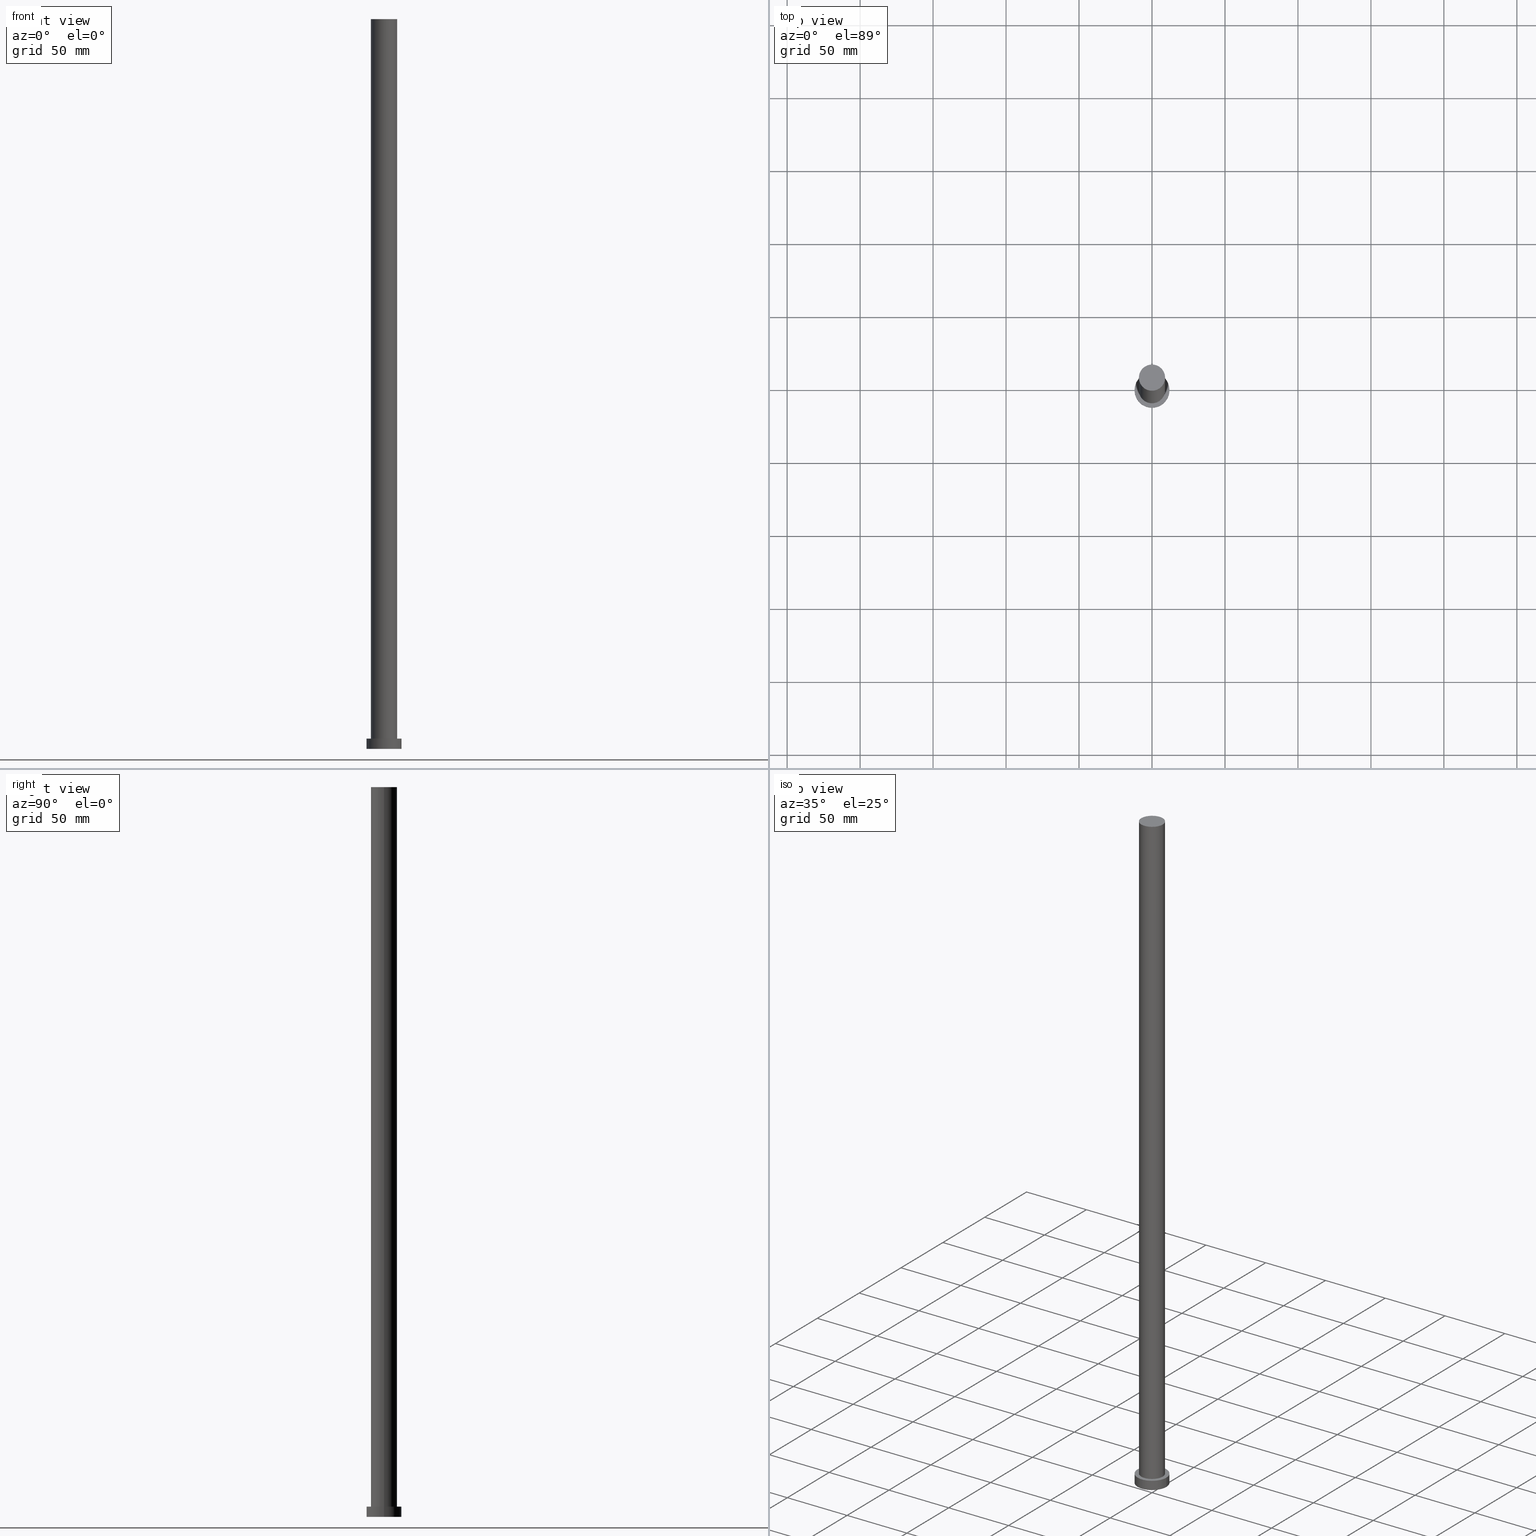
[diagram: canonical four-view strip — front | top / right | iso, engineering-drawing reading convention]
A machine part, canonical four-view strip (front | top / right | iso — engineering-drawing reading convention). The complete STEP part file that produces these views, byte-faithful:
ISO-10303-21;
HEADER;
FILE_DESCRIPTION (( 'STEP AP203' ),
    '1' );
FILE_NAME ('f5ec.STEP',
    '2023-02-13T07:35:05',
    ( '' ),
    ( '' ),
    'SwSTEP 2.0',
    'SolidWorks 2019',
    '' );
FILE_SCHEMA (( 'CONFIG_CONTROL_DESIGN' ));
ENDSEC;

DATA;
#1 = DIRECTION ( 'NONE',  ( 0.000000000000000000, 0.000000000000000000, 1.000000000000000000 ) ) ;
#2 = CARTESIAN_POINT ( 'NONE',  ( 0.000000000000000000, 0.000000000000000000, 0.000000000000000000 ) ) ;
#3 = EDGE_CURVE ( 'NONE', #236, #179, #159, .T. ) ;
#4 = ORIENTED_EDGE ( 'NONE', *, *, #248, .T. ) ;
#5 = PLANE ( 'NONE',  #111 ) ;
#6 = FACE_OUTER_BOUND ( 'NONE', #119, .T. ) ;
#7 = ORIENTED_EDGE ( 'NONE', *, *, #235, .T. ) ;
#8 = ORIENTED_EDGE ( 'NONE', *, *, #19, .T. ) ;
#9 = CC_DESIGN_DATE_AND_TIME_ASSIGNMENT ( #15, #191, ( #213 ) ) ;
#10 = CYLINDRICAL_SURFACE ( 'NONE', #221, 12.00000000000000178 ) ;
#11 = CIRCLE ( 'NONE', #86, 9.000000000000000000 ) ;
#12 = CC_DESIGN_APPROVAL ( #136, ( #213 ) ) ;
#13 = CARTESIAN_POINT ( 'NONE',  ( -9.000000000000000000, 0.000000000000000000, 500.0000000000000000 ) ) ;
#14 = CALENDAR_DATE ( 2023, 13, 2 ) ;
#15 = DATE_AND_TIME ( #185, #157 ) ;
#16 = CLOSED_SHELL ( 'NONE', ( #148, #126, #121, #21, #38, #205, #75 ) ) ;
#17 = CC_DESIGN_APPROVAL ( #219, ( #194 ) ) ;
#18 = FACE_BOUND ( 'NONE', #56, .T. ) ;
#19 = EDGE_CURVE ( 'NONE', #174, #52, #43, .T. ) ;
#20 = ORIENTED_EDGE ( 'NONE', *, *, #210, .T. ) ;
#21 = ADVANCED_FACE ( 'NONE', ( #18, #204 ), #163, .T. ) ;
#22 = LOCAL_TIME ( 8, 35, 5.000000000000000000, #109 ) ;
#23 = EDGE_LOOP ( 'NONE', ( #4, #229 ) ) ;
#24 = CALENDAR_DATE ( 2023, 13, 2 ) ;
#25 = PERSON_AND_ORGANIZATION_ROLE ( 'design_owner' ) ;
#26 = EDGE_CURVE ( 'NONE', #199, #186, #251, .T. ) ;
#27 = DIRECTION ( 'NONE',  ( -1.000000000000000000, 0.000000000000000000, 0.000000000000000000 ) ) ;
#28 = DIRECTION ( 'NONE',  ( 1.000000000000000000, 0.000000000000000000, 0.000000000000000000 ) ) ;
#29 = CARTESIAN_POINT ( 'NONE',  ( 0.000000000000000000, 0.000000000000000000, 0.000000000000000000 ) ) ;
#30 = CARTESIAN_POINT ( 'NONE',  ( 0.000000000000000000, 0.000000000000000000, 500.0000000000000000 ) ) ;
#31 = ORIENTED_EDGE ( 'NONE', *, *, #55, .F. ) ;
#32 = APPLICATION_PROTOCOL_DEFINITION ( 'international standard', 'config_control_design', 1994, #70 ) ;
#33 = DIRECTION ( 'NONE',  ( 0.000000000000000000, 0.000000000000000000, 1.000000000000000000 ) ) ;
#34 = DATE_AND_TIME ( #44, #35 ) ;
#35 = LOCAL_TIME ( 8, 35, 5.000000000000000000, #218 ) ;
#36 = DIRECTION ( 'NONE',  ( -1.000000000000000000, 0.000000000000000000, 0.000000000000000000 ) ) ;
#37 = ORIENTED_EDGE ( 'NONE', *, *, #55, .T. ) ;
#38 = ADVANCED_FACE ( 'NONE', ( #6 ), #50, .F. ) ;
#39 = AXIS2_PLACEMENT_3D ( 'NONE', #114, #93, #181 ) ;
#40 = MECHANICAL_CONTEXT ( 'NONE', #225, 'mechanical' ) ;
#41 = EDGE_CURVE ( 'NONE', #186, #199, #73, .T. ) ;
#42 = APPLICATION_PROTOCOL_DEFINITION ( 'international standard', 'config_control_design', 1994, #225 ) ;
#43 = CIRCLE ( 'NONE', #254, 9.000000000000000000 ) ;
#44 = CALENDAR_DATE ( 2023, 13, 2 ) ;
#45 = APPROVAL_PERSON_ORGANIZATION ( #176, #102, #166 ) ;
#46 = PERSON_AND_ORGANIZATION ( #80, #202 ) ;
#47 = UNCERTAINTY_MEASURE_WITH_UNIT (LENGTH_MEASURE( 1.000000000000000082E-05 ), #187, 'distance_accuracy_value', 'NONE');
#48 = EDGE_CURVE ( 'NONE', #174, #179, #201, .T. ) ;
#49 = AXIS2_PLACEMENT_3D ( 'NONE', #117, #165, #147 ) ;
#50 = PLANE ( 'NONE',  #71 ) ;
#51 = FACE_OUTER_BOUND ( 'NONE', #81, .T. ) ;
#52 = VERTEX_POINT ( 'NONE', #190 ) ;
#53 = SECURITY_CLASSIFICATION ( '', '', #151 ) ;
#54 = DIRECTION ( 'NONE',  ( -0.000000000000000000, -0.000000000000000000, -1.000000000000000000 ) ) ;
#55 = EDGE_CURVE ( 'NONE', #179, #236, #167, .T. ) ;
#56 = EDGE_LOOP ( 'NONE', ( #31, #230 ) ) ;
#57 = CARTESIAN_POINT ( 'NONE',  ( 12.00000000000000178, 1.469576158976824144E-15, 7.000000000000000000 ) ) ;
#58 = ORIENTED_EDGE ( 'NONE', *, *, #41, .T. ) ;
#59 = AXIS2_PLACEMENT_3D ( 'NONE', #30, #54, #27 ) ;
#60 = COORDINATED_UNIVERSAL_TIME_OFFSET ( 1, 0, .AHEAD. ) ;
#61 = PRODUCT_RELATED_PRODUCT_CATEGORY ( 'detail', '', ( #107 ) ) ;
#62 = PRODUCT_DEFINITION_SHAPE ( 'NONE', 'NONE',  #213 ) ;
#63 = ORIENTED_EDGE ( 'NONE', *, *, #3, .T. ) ;
#64 = PERSON_AND_ORGANIZATION ( #80, #202 ) ;
#65 = CARTESIAN_POINT ( 'NONE',  ( 9.000000000000000000, 1.102182119232617714E-15, 500.0000000000000000 ) ) ;
#66 = AXIS2_PLACEMENT_3D ( 'NONE', #196, #103, #234 ) ;
#67 = DATE_AND_TIME ( #175, #22 ) ;
#68 = VECTOR ( 'NONE', #209, 1000.000000000000000 ) ;
#69 = CARTESIAN_POINT ( 'NONE',  ( 0.000000000000000000, 0.000000000000000000, 0.000000000000000000 ) ) ;
#70 = APPLICATION_CONTEXT ( 'configuration controlled 3d designs of mechanical parts and assemblies' ) ;
#71 = AXIS2_PLACEMENT_3D ( 'NONE', #2, #223, #160 ) ;
#72 = ORIENTED_EDGE ( 'NONE', *, *, #134, .T. ) ;
#73 = CIRCLE ( 'NONE', #120, 12.00000000000000178 ) ;
#74 = DIRECTION ( 'NONE',  ( 1.000000000000000000, 0.000000000000000000, 0.000000000000000000 ) ) ;
#75 = ADVANCED_FACE ( 'NONE', ( #182 ), #5, .T. ) ;
#76 = ORIENTED_EDGE ( 'NONE', *, *, #48, .F. ) ;
#77 = EDGE_LOOP ( 'NONE', ( #8, #141 ) ) ;
#78 = PERSON_AND_ORGANIZATION_ROLE ( 'creator' ) ;
#79 = CARTESIAN_POINT ( 'NONE',  ( 0.000000000000000000, 0.000000000000000000, 500.0000000000000000 ) ) ;
#80 = PERSON ( 'NEUR�EN�', 'NEUR�EN�', 'NEUR�EN�', ('NEUR�EN�'), ('NEUR�EN�'), ('NEUR�EN�') ) ;
#81 = EDGE_LOOP ( 'NONE', ( #100, #164, #97, #37 ) ) ;
#82 = DIRECTION ( 'NONE',  ( -0.000000000000000000, -0.000000000000000000, -1.000000000000000000 ) ) ;
#83 = EDGE_LOOP ( 'NONE', ( #170, #7, #122, #125 ) ) ;
#84 = APPROVAL_STATUS ( 'not_yet_approved' ) ;
#85 = LINE ( 'NONE', #65, #193 ) ;
#86 = AXIS2_PLACEMENT_3D ( 'NONE', #214, #87, #88 ) ;
#87 = DIRECTION ( 'NONE',  ( 0.000000000000000000, 0.000000000000000000, 1.000000000000000000 ) ) ;
#88 = DIRECTION ( 'NONE',  ( 1.000000000000000000, 0.000000000000000000, 0.000000000000000000 ) ) ;
#89 = DIRECTION ( 'NONE',  ( 0.000000000000000000, 0.000000000000000000, 1.000000000000000000 ) ) ;
#90 = PERSON_AND_ORGANIZATION_ROLE ( 'classification_officer' ) ;
#91 = PERSON_AND_ORGANIZATION ( #80, #202 ) ;
#92 = DIRECTION ( 'NONE',  ( -0.000000000000000000, -0.000000000000000000, -1.000000000000000000 ) ) ;
#93 = DIRECTION ( 'NONE',  ( 0.000000000000000000, 0.000000000000000000, 1.000000000000000000 ) ) ;
#94 = COORDINATED_UNIVERSAL_TIME_OFFSET ( 1, 0, .AHEAD. ) ;
#95 = CC_DESIGN_SECURITY_CLASSIFICATION ( #53, ( #194 ) ) ;
#96 = VERTEX_POINT ( 'NONE', #110 ) ;
#97 = ORIENTED_EDGE ( 'NONE', *, *, #48, .T. ) ;
#98 =( NAMED_UNIT ( * ) PLANE_ANGLE_UNIT ( ) SI_UNIT ( $, .RADIAN. ) );
#99 = CIRCLE ( 'NONE', #252, 12.00000000000000178 ) ;
#100 = ORIENTED_EDGE ( 'NONE', *, *, #134, .F. ) ;
#101 = DIRECTION ( 'NONE',  ( 1.000000000000000000, 0.000000000000000000, 0.000000000000000000 ) ) ;
#102 = APPROVAL ( #253, 'NEUR�EN�' ) ;
#103 = DIRECTION ( 'NONE',  ( -0.000000000000000000, -0.000000000000000000, -1.000000000000000000 ) ) ;
#104 = DIRECTION ( 'NONE',  ( -0.000000000000000000, -0.000000000000000000, -1.000000000000000000 ) ) ;
#105 = PERSON_AND_ORGANIZATION ( #80, #202 ) ;
#106 = PERSON_AND_ORGANIZATION ( #80, #202 ) ;
#107 = PRODUCT ( 'f5ec', 'f5ec', '', ( #40 ) ) ;
#108 = EDGE_CURVE ( 'NONE', #52, #174, #11, .T. ) ;
#109 = COORDINATED_UNIVERSAL_TIME_OFFSET ( 1, 0, .AHEAD. ) ;
#110 = CARTESIAN_POINT ( 'NONE',  ( 12.00000000000000178, 1.469576158976824144E-15, 7.000000000000000000 ) ) ;
#111 = AXIS2_PLACEMENT_3D ( 'NONE', #128, #231, #129 ) ;
#112 = CC_DESIGN_PERSON_AND_ORGANIZATION_ASSIGNMENT ( #64, #220, ( #194 ) ) ;
#113 = VECTOR ( 'NONE', #203, 1000.000000000000000 ) ;
#114 = CARTESIAN_POINT ( 'NONE',  ( 0.000000000000000000, 0.000000000000000000, 7.000000000000000000 ) ) ;
#115 = DIRECTION ( 'NONE',  ( 1.000000000000000000, 0.000000000000000000, 0.000000000000000000 ) ) ;
#116 =( GEOMETRIC_REPRESENTATION_CONTEXT ( 3 ) GLOBAL_UNCERTAINTY_ASSIGNED_CONTEXT ( ( #47 ) ) GLOBAL_UNIT_ASSIGNED_CONTEXT ( ( #187, #98, #183 ) ) REPRESENTATION_CONTEXT ( 'NONE', 'WORKASPACE' ) );
#117 = CARTESIAN_POINT ( 'NONE',  ( 0.000000000000000000, 0.000000000000000000, 7.000000000000000000 ) ) ;
#118 = CARTESIAN_POINT ( 'NONE',  ( -12.00000000000000178, 0.000000000000000000, 7.000000000000000000 ) ) ;
#119 = EDGE_LOOP ( 'NONE', ( #240, #146 ) ) ;
#120 = AXIS2_PLACEMENT_3D ( 'NONE', #29, #244, #115 ) ;
#121 = ADVANCED_FACE ( 'NONE', ( #154 ), #238, .T. ) ;
#122 = ORIENTED_EDGE ( 'NONE', *, *, #26, .T. ) ;
#123 = CIRCLE ( 'NONE', #224, 12.00000000000000178 ) ;
#124 = MANIFOLD_SOLID_BREP ( 'P�idat vysunut�m3', #16 ) ;
#125 = ORIENTED_EDGE ( 'NONE', *, *, #210, .F. ) ;
#126 = ADVANCED_FACE ( 'NONE', ( #246 ), #10, .T. ) ;
#127 = AXIS2_PLACEMENT_3D ( 'NONE', #79, #104, #153 ) ;
#128 = CARTESIAN_POINT ( 'NONE',  ( 0.000000000000000000, 0.000000000000000000, 500.0000000000000000 ) ) ;
#129 = DIRECTION ( 'NONE',  ( 1.000000000000000000, 0.000000000000000000, -0.000000000000000000 ) ) ;
#130 = DATE_AND_TIME ( #24, #216 ) ;
#131 = APPROVAL_DATE_TIME ( #133, #219 ) ;
#132 = LOCAL_TIME ( 8, 35, 5.000000000000000000, #169 ) ;
#133 = DATE_AND_TIME ( #14, #132 ) ;
#134 = EDGE_CURVE ( 'NONE', #52, #236, #85, .T. ) ;
#135 = CARTESIAN_POINT ( 'NONE',  ( 12.00000000000000178, 1.469576158976824144E-15, 0.000000000000000000 ) ) ;
#136 = APPROVAL ( #250, 'NEUR�EN�' ) ;
#137 = EDGE_LOOP ( 'NONE', ( #247, #72, #63, #76 ) ) ;
#138 = CYLINDRICAL_SURFACE ( 'NONE', #59, 9.000000000000000000 ) ;
#139 = APPROVAL_DATE_TIME ( #34, #136 ) ;
#140 = APPROVAL_ROLE ( '' ) ;
#141 = ORIENTED_EDGE ( 'NONE', *, *, #108, .T. ) ;
#142 = CC_DESIGN_APPROVAL ( #102, ( #53 ) ) ;
#143 = CARTESIAN_POINT ( 'NONE',  ( -12.00000000000000178, 0.000000000000000000, 7.000000000000000000 ) ) ;
#144 = CARTESIAN_POINT ( 'NONE',  ( 0.000000000000000000, 0.000000000000000000, 7.000000000000000000 ) ) ;
#145 = DIRECTION ( 'NONE',  ( -0.000000000000000000, -0.000000000000000000, -1.000000000000000000 ) ) ;
#146 = ORIENTED_EDGE ( 'NONE', *, *, #26, .F. ) ;
#147 = DIRECTION ( 'NONE',  ( 1.000000000000000000, 0.000000000000000000, 0.000000000000000000 ) ) ;
#148 = ADVANCED_FACE ( 'NONE', ( #178 ), #149, .T. ) ;
#149 = CYLINDRICAL_SURFACE ( 'NONE', #127, 9.000000000000000000 ) ;
#150 = DATE_TIME_ROLE ( 'classification_date' ) ;
#151 = SECURITY_CLASSIFICATION_LEVEL ( 'unclassified' ) ;
#152 = CC_DESIGN_PERSON_AND_ORGANIZATION_ASSIGNMENT ( #192, #90, ( #53 ) ) ;
#153 = DIRECTION ( 'NONE',  ( -1.000000000000000000, 0.000000000000000000, 0.000000000000000000 ) ) ;
#154 = FACE_OUTER_BOUND ( 'NONE', #226, .T. ) ;
#155 = VECTOR ( 'NONE', #82, 1000.000000000000000 ) ;
#156 = SHAPE_DEFINITION_REPRESENTATION ( #62, #211 ) ;
#157 = LOCAL_TIME ( 8, 35, 5.000000000000000000, #94 ) ;
#158 = CC_DESIGN_PERSON_AND_ORGANIZATION_ASSIGNMENT ( #105, #195, ( #194 ) ) ;
#159 = CIRCLE ( 'NONE', #49, 9.000000000000000000 ) ;
#160 = DIRECTION ( 'NONE',  ( 1.000000000000000000, 0.000000000000000000, -0.000000000000000000 ) ) ;
#161 = DIRECTION ( 'NONE',  ( 0.000000000000000000, 0.000000000000000000, 1.000000000000000000 ) ) ;
#162 = CARTESIAN_POINT ( 'NONE',  ( 0.000000000000000000, 0.000000000000000000, 7.000000000000000000 ) ) ;
#163 = PLANE ( 'NONE',  #39 ) ;
#164 = ORIENTED_EDGE ( 'NONE', *, *, #19, .F. ) ;
#165 = DIRECTION ( 'NONE',  ( 0.000000000000000000, 0.000000000000000000, 1.000000000000000000 ) ) ;
#166 = APPROVAL_ROLE ( '' ) ;
#167 = CIRCLE ( 'NONE', #232, 9.000000000000000000 ) ;
#168 = CARTESIAN_POINT ( 'NONE',  ( 0.000000000000000000, 0.000000000000000000, 7.000000000000000000 ) ) ;
#169 = COORDINATED_UNIVERSAL_TIME_OFFSET ( 1, 0, .AHEAD. ) ;
#170 = ORIENTED_EDGE ( 'NONE', *, *, #188, .F. ) ;
#171 = AXIS2_PLACEMENT_3D ( 'NONE', #69, #89, #222 ) ;
#172 = DIRECTION ( 'NONE',  ( 0.000000000000000000, 0.000000000000000000, 1.000000000000000000 ) ) ;
#173 = PERSON_AND_ORGANIZATION ( #80, #202 ) ;
#174 = VERTEX_POINT ( 'NONE', #237 ) ;
#175 = CALENDAR_DATE ( 2023, 13, 2 ) ;
#176 = PERSON_AND_ORGANIZATION ( #80, #202 ) ;
#177 = APPROVAL_PERSON_ORGANIZATION ( #46, #136, #140 ) ;
#178 = FACE_OUTER_BOUND ( 'NONE', #137, .T. ) ;
#179 = VERTEX_POINT ( 'NONE', #206 ) ;
#180 = CARTESIAN_POINT ( 'NONE',  ( -12.00000000000000178, 0.000000000000000000, 0.000000000000000000 ) ) ;
#181 = DIRECTION ( 'NONE',  ( 1.000000000000000000, 0.000000000000000000, -0.000000000000000000 ) ) ;
#182 = FACE_OUTER_BOUND ( 'NONE', #77, .T. ) ;
#183 =( NAMED_UNIT ( * ) SI_UNIT ( $, .STERADIAN. ) SOLID_ANGLE_UNIT ( ) );
#184 = CC_DESIGN_PERSON_AND_ORGANIZATION_ASSIGNMENT ( #91, #78, ( #213 ) ) ;
#185 = CALENDAR_DATE ( 2023, 13, 2 ) ;
#186 = VERTEX_POINT ( 'NONE', #180 ) ;
#187 =( LENGTH_UNIT ( ) NAMED_UNIT ( * ) SI_UNIT ( .MILLI., .METRE. ) );
#188 = EDGE_CURVE ( 'NONE', #96, #227, #123, .T. ) ;
#189 = APPROVAL_ROLE ( '' ) ;
#190 = CARTESIAN_POINT ( 'NONE',  ( 9.000000000000000000, 1.102182119232617714E-15, 500.0000000000000000 ) ) ;
#191 = DATE_TIME_ROLE ( 'creation_date' ) ;
#192 = PERSON_AND_ORGANIZATION ( #80, #202 ) ;
#193 = VECTOR ( 'NONE', #92, 1000.000000000000000 ) ;
#194 = PRODUCT_DEFINITION_FORMATION_WITH_SPECIFIED_SOURCE ( 'LIBOVOLN�', '', #107, .NOT_KNOWN. ) ;
#195 = PERSON_AND_ORGANIZATION_ROLE ( 'creator' ) ;
#196 = CARTESIAN_POINT ( 'NONE',  ( 0.000000000000000000, 0.000000000000000000, 7.000000000000000000 ) ) ;
#197 = LINE ( 'NONE', #143, #113 ) ;
#198 = CC_DESIGN_DATE_AND_TIME_ASSIGNMENT ( #130, #150, ( #53 ) ) ;
#199 = VERTEX_POINT ( 'NONE', #135 ) ;
#200 = CARTESIAN_POINT ( 'NONE',  ( 0.000000000000000000, 0.000000000000000000, 7.000000000000000000 ) ) ;
#201 = LINE ( 'NONE', #13, #155 ) ;
#202 = ORGANIZATION ( 'NEUR�EN�', 'NEUR�EN�', '' ) ;
#203 = DIRECTION ( 'NONE',  ( -0.000000000000000000, -0.000000000000000000, -1.000000000000000000 ) ) ;
#204 = FACE_OUTER_BOUND ( 'NONE', #23, .T. ) ;
#205 = ADVANCED_FACE ( 'NONE', ( #51 ), #138, .T. ) ;
#206 = CARTESIAN_POINT ( 'NONE',  ( -9.000000000000000000, 0.000000000000000000, 7.000000000000000000 ) ) ;
#207 = AXIS2_PLACEMENT_3D ( 'NONE', #239, #1, #74 ) ;
#208 = LINE ( 'NONE', #57, #68 ) ;
#209 = DIRECTION ( 'NONE',  ( -0.000000000000000000, -0.000000000000000000, -1.000000000000000000 ) ) ;
#210 = EDGE_CURVE ( 'NONE', #227, #186, #197, .T. ) ;
#211 = ADVANCED_BREP_SHAPE_REPRESENTATION ( 'f5ec', ( #124, #171 ), #116 ) ;
#212 = APPROVAL_PERSON_ORGANIZATION ( #173, #219, #189 ) ;
#213 = PRODUCT_DEFINITION ( 'NEZN�M�', '', #194, #255 ) ;
#214 = CARTESIAN_POINT ( 'NONE',  ( 0.000000000000000000, 0.000000000000000000, 500.0000000000000000 ) ) ;
#215 = APPROVAL_DATE_TIME ( #67, #102 ) ;
#216 = LOCAL_TIME ( 8, 35, 5.000000000000000000, #60 ) ;
#217 = DIRECTION ( 'NONE',  ( 0.000000000000000000, 0.000000000000000000, 1.000000000000000000 ) ) ;
#218 = COORDINATED_UNIVERSAL_TIME_OFFSET ( 1, 0, .AHEAD. ) ;
#219 = APPROVAL ( #84, 'NEUR�EN�' ) ;
#220 = PERSON_AND_ORGANIZATION_ROLE ( 'design_supplier' ) ;
#221 = AXIS2_PLACEMENT_3D ( 'NONE', #144, #145, #36 ) ;
#222 = DIRECTION ( 'NONE',  ( 1.000000000000000000, 0.000000000000000000, 0.000000000000000000 ) ) ;
#223 = DIRECTION ( 'NONE',  ( 0.000000000000000000, 0.000000000000000000, 1.000000000000000000 ) ) ;
#224 = AXIS2_PLACEMENT_3D ( 'NONE', #200, #161, #241 ) ;
#225 = APPLICATION_CONTEXT ( 'configuration controlled 3d designs of mechanical parts and assemblies' ) ;
#226 = EDGE_LOOP ( 'NONE', ( #243, #233, #20, #58 ) ) ;
#227 = VERTEX_POINT ( 'NONE', #118 ) ;
#228 = CARTESIAN_POINT ( 'NONE',  ( 9.000000000000000000, 1.102182119232617714E-15, 7.000000000000000000 ) ) ;
#229 = ORIENTED_EDGE ( 'NONE', *, *, #188, .T. ) ;
#230 = ORIENTED_EDGE ( 'NONE', *, *, #3, .F. ) ;
#231 = DIRECTION ( 'NONE',  ( 0.000000000000000000, 0.000000000000000000, 1.000000000000000000 ) ) ;
#232 = AXIS2_PLACEMENT_3D ( 'NONE', #168, #172, #101 ) ;
#233 = ORIENTED_EDGE ( 'NONE', *, *, #248, .F. ) ;
#234 = DIRECTION ( 'NONE',  ( -1.000000000000000000, 0.000000000000000000, 0.000000000000000000 ) ) ;
#235 = EDGE_CURVE ( 'NONE', #96, #199, #208, .T. ) ;
#236 = VERTEX_POINT ( 'NONE', #228 ) ;
#237 = CARTESIAN_POINT ( 'NONE',  ( -9.000000000000000000, 0.000000000000000000, 500.0000000000000000 ) ) ;
#238 = CYLINDRICAL_SURFACE ( 'NONE', #66, 12.00000000000000178 ) ;
#239 = CARTESIAN_POINT ( 'NONE',  ( 0.000000000000000000, 0.000000000000000000, 0.000000000000000000 ) ) ;
#240 = ORIENTED_EDGE ( 'NONE', *, *, #41, .F. ) ;
#241 = DIRECTION ( 'NONE',  ( 1.000000000000000000, 0.000000000000000000, 0.000000000000000000 ) ) ;
#242 = CC_DESIGN_PERSON_AND_ORGANIZATION_ASSIGNMENT ( #106, #25, ( #107 ) ) ;
#243 = ORIENTED_EDGE ( 'NONE', *, *, #235, .F. ) ;
#244 = DIRECTION ( 'NONE',  ( 0.000000000000000000, 0.000000000000000000, 1.000000000000000000 ) ) ;
#245 = DIRECTION ( 'NONE',  ( 1.000000000000000000, 0.000000000000000000, 0.000000000000000000 ) ) ;
#246 = FACE_OUTER_BOUND ( 'NONE', #83, .T. ) ;
#247 = ORIENTED_EDGE ( 'NONE', *, *, #108, .F. ) ;
#248 = EDGE_CURVE ( 'NONE', #227, #96, #99, .T. ) ;
#249 = CARTESIAN_POINT ( 'NONE',  ( 0.000000000000000000, 0.000000000000000000, 500.0000000000000000 ) ) ;
#250 = APPROVAL_STATUS ( 'not_yet_approved' ) ;
#251 = CIRCLE ( 'NONE', #207, 12.00000000000000178 ) ;
#252 = AXIS2_PLACEMENT_3D ( 'NONE', #162, #33, #245 ) ;
#253 = APPROVAL_STATUS ( 'not_yet_approved' ) ;
#254 = AXIS2_PLACEMENT_3D ( 'NONE', #249, #217, #28 ) ;
#255 = DESIGN_CONTEXT ( 'detailed design', #70, 'design' ) ;
ENDSEC;
END-ISO-10303-21;
